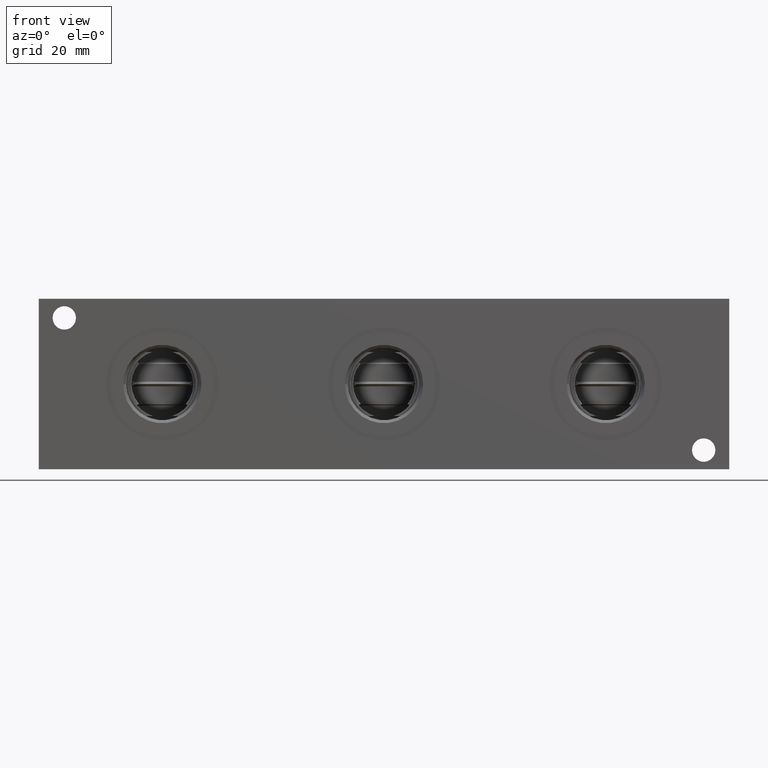
[diagram: clean part render]
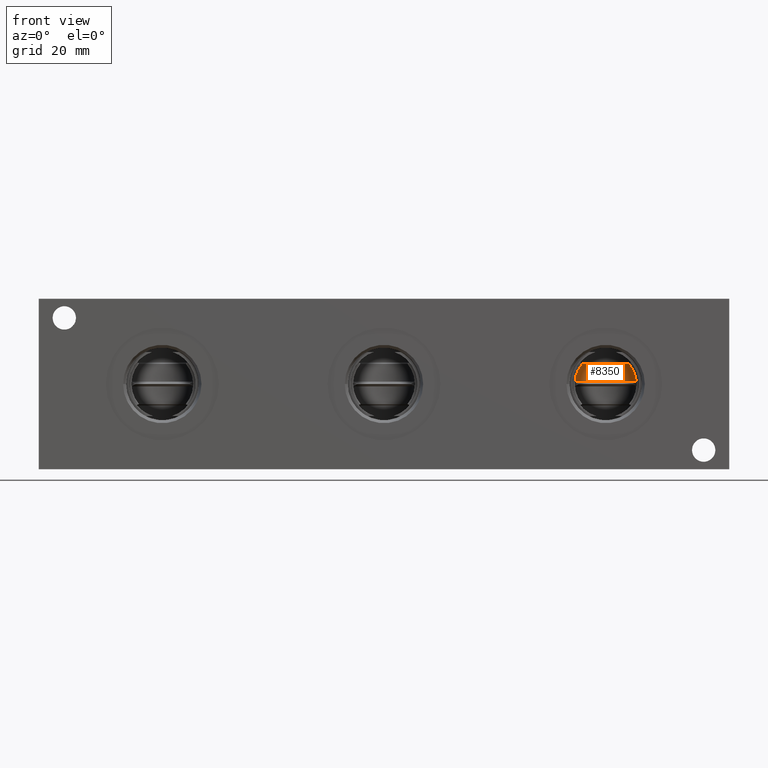
[diagram: same view with one face highlighted and labeled with its STEP entity id]
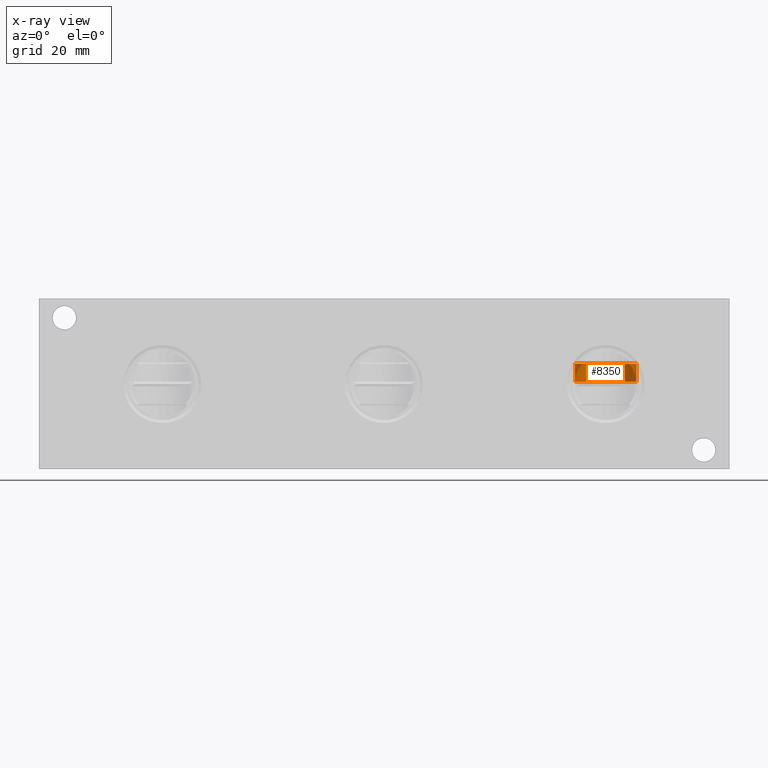
[diagram: x-ray of the same camera — body ghosted, the highlighted face saturated]
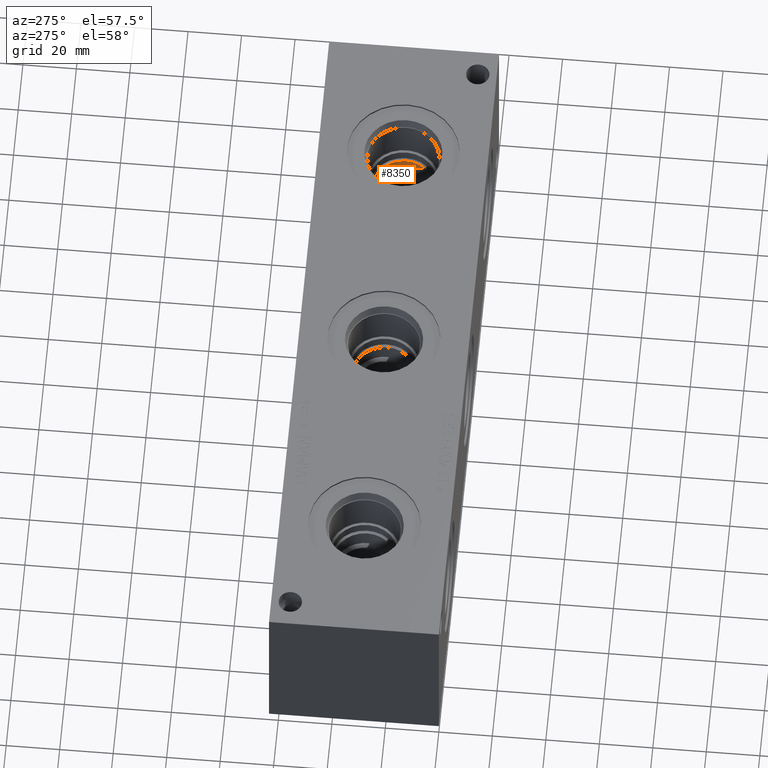
[diagram: same view with one face highlighted and labeled with its STEP entity id]
A machine part, front view. The second image highlights one B-rep face of the part: STEP entity #8350.
The next image is the same camera in x-ray: the body ghosted, the highlighted face saturated — about 0% of this face is hidden behind the body in this view.
A second angle (auxiliary view) of the same face is appended — the face is thin or edge-on in the first view.
In plain terms, the highlighted cylindrical surface (edge-blend (fillet) strip) has radius 11.5062 mm, axis along (0, 0, 1).
Its self-contained STEP definition (entity closure, byte-faithful):
#22=ELLIPSE('',#8715,16.2722240913773,11.5062);
#36=ELLIPSE('',#8777,16.2722240913773,11.5062);
#124=CYLINDRICAL_SURFACE('',#8849,11.5062);
#199=CIRCLE('',#8710,11.5062);
#272=CIRCLE('',#8850,11.5062);
#1082=FACE_OUTER_BOUND('',#1553,.T.);
#1553=EDGE_LOOP('',(#7119,#7120,#7121,#7122));
#3735=VERTEX_POINT('',#14021);
#3736=VERTEX_POINT('',#14026);
#3737=VERTEX_POINT('',#14037);
#3772=VERTEX_POINT('',#14191);
#4811=EDGE_CURVE('',#3735,#3736,#199,.T.);
#4815=EDGE_CURVE('',#3737,#3735,#22,.T.);
#4876=EDGE_CURVE('',#3736,#3772,#36,.T.);
#4942=EDGE_CURVE('',#3772,#3737,#272,.T.);
#7119=ORIENTED_EDGE('',*,*,#4815,.F.);
#7120=ORIENTED_EDGE('',*,*,#4942,.F.);
#7121=ORIENTED_EDGE('',*,*,#4876,.F.);
#7122=ORIENTED_EDGE('',*,*,#4811,.F.);
#8350=ADVANCED_FACE('',(#1082),#124,.F.);
#8710=AXIS2_PLACEMENT_3D('',#14027,#10238,#10239);
#8715=AXIS2_PLACEMENT_3D('',#14039,#10248,#10249);
#8777=AXIS2_PLACEMENT_3D('',#14192,#10384,#10385);
#8849=AXIS2_PLACEMENT_3D('',#14329,#10545,#10546);
#8850=AXIS2_PLACEMENT_3D('',#14330,#10547,#10548);
#10238=DIRECTION('center_axis',(0.,0.,1.));
#10239=DIRECTION('ref_axis',(1.,0.,0.));
#10248=DIRECTION('center_axis',(0.,0.707106781186548,0.707106781186547));
#10249=DIRECTION('ref_axis',(0.,0.707106781186547,-0.707106781186548));
#10384=DIRECTION('center_axis',(0.,0.707106781186548,0.707106781186547));
#10385=DIRECTION('ref_axis',(0.,0.707106781186547,-0.707106781186548));
#10545=DIRECTION('center_axis',(0.,0.,1.));
#10546=DIRECTION('ref_axis',(-1.49307989451785E-15,1.,0.));
#10547=DIRECTION('center_axis',(0.,0.,-1.));
#10548=DIRECTION('ref_axis',(1.,0.,0.));
#14021=CARTESIAN_POINT('',(222.596311770974,30.85722,32.64278));
#14026=CARTESIAN_POINT('',(199.653288229026,30.85722,32.64278));
#14027=CARTESIAN_POINT('Origin',(211.1248,31.75,32.64278));
#14037=CARTESIAN_POINT('',(219.819798862128,24.2141103227564,39.2858896772436));
#14039=CARTESIAN_POINT('Origin',(211.1248,31.75,31.75));
#14191=CARTESIAN_POINT('',(202.429801137872,24.2141103227564,39.2858896772436));
#14192=CARTESIAN_POINT('Origin',(211.1248,31.75,31.75));
#14329=CARTESIAN_POINT('Origin',(211.1248,31.75,48.07139));
#14330=CARTESIAN_POINT('Origin',(211.1248,31.75,39.2858896772436));